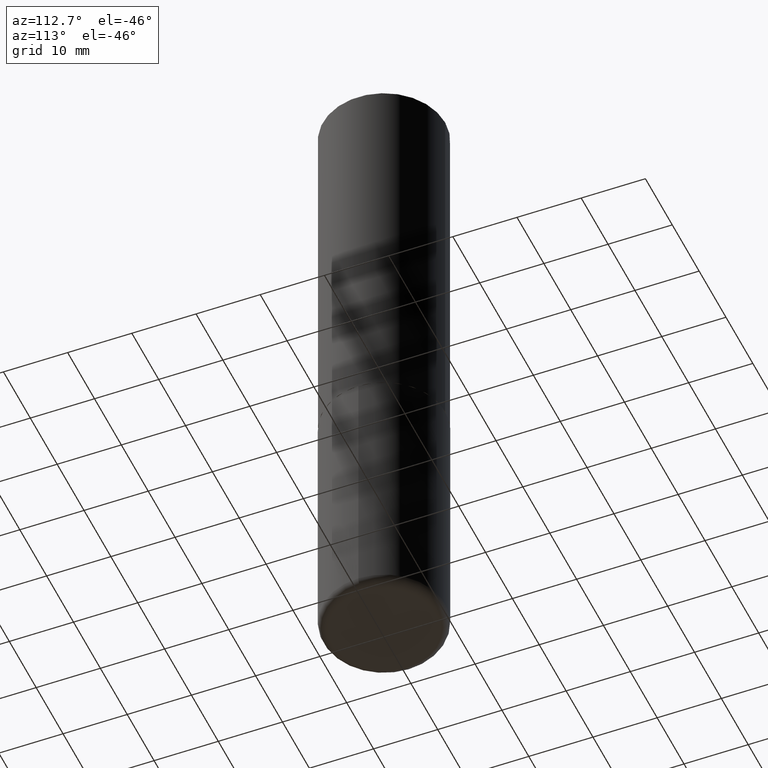
[diagram: clean part render]
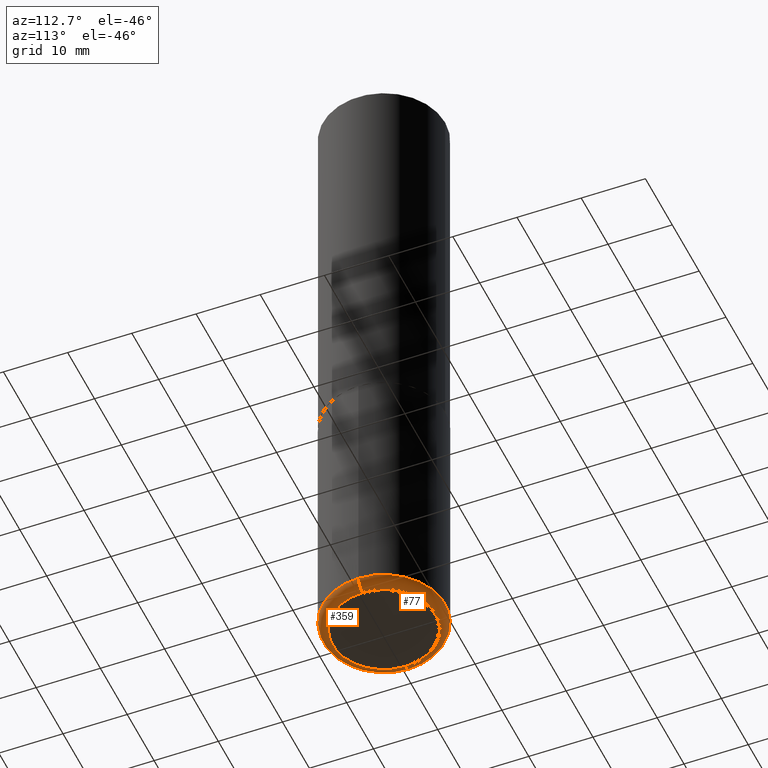
[diagram: same view with one multi-face feature highlighted, each face labeled with its STEP entity id]
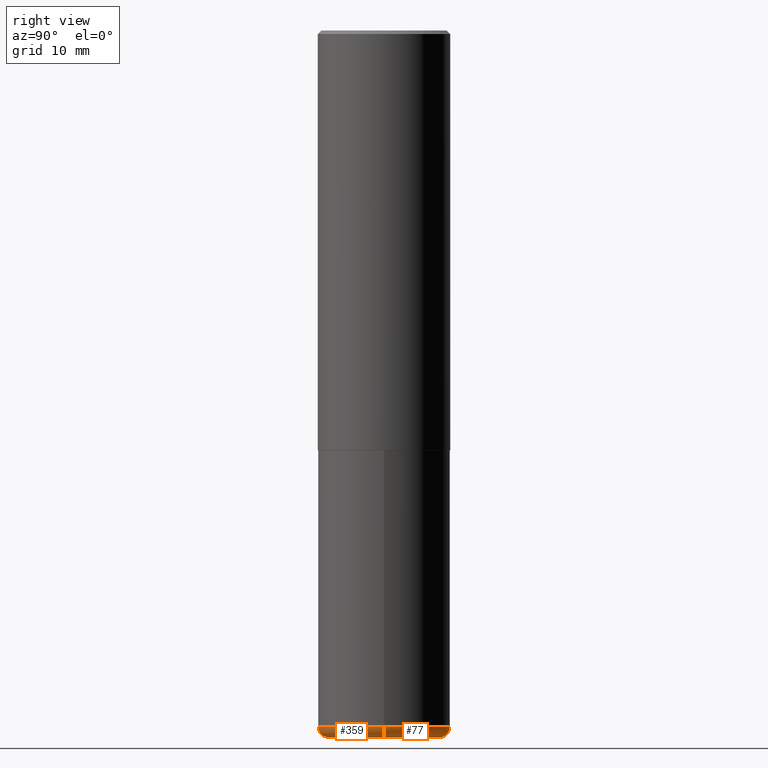
[diagram: same view with one multi-face feature highlighted, each face labeled with its STEP entity id]
A machine part, auxiliary view. The highlighted faces form ONE feature: a constant-radius fillet chain: 2 tangent blend faces with common blend radius 1.524 mm. The faces share edges in the B-rep.
A second angle (right view) of the same feature is appended — it is thin or edge-on in the first view.
Their STEP definitions:
[1] entity #359 (Torus):
#22 = AXIS2_PLACEMENT_3D ( 'NONE', #84, #278, #179 ) ;
#30 = AXIS2_PLACEMENT_3D ( 'NONE', #321, #124, #225 ) ;
#32 = DIRECTION ( 'NONE',  ( 1.000000000000000000, -6.982962677686279332E-15, 0.000000000000000000 ) ) ;
#50 = DIRECTION ( 'NONE',  ( -2.445468806185136597E-29, 3.491481338843145583E-15, 1.000000000000000000 ) ) ;
#53 = AXIS2_PLACEMENT_3D ( 'NONE', #210, #50, #371 ) ;
#64 = DIRECTION ( 'NONE',  ( -6.982962677686266711E-15, -1.000000000000000000, 3.491481338843145583E-15 ) ) ;
#74 = AXIS2_PLACEMENT_3D ( 'NONE', #265, #128, #403 ) ;
#84 = CARTESIAN_POINT ( 'NONE',  ( 9.781875224740547508E-29, -1.396592535537258391E-14, -4.000000000000000888 ) ) ;
#93 = EDGE_LOOP ( 'NONE', ( #178, #111, #127, #295 ) ) ;
#111 = ORIENTED_EDGE ( 'NONE', *, *, #370, .T. ) ;
#124 = DIRECTION ( 'NONE',  ( 7.105427357601001859E-15, 1.000000000000000000, -3.491481338843145583E-15 ) ) ;
#127 = ORIENTED_EDGE ( 'NONE', *, *, #145, .T. ) ;
#128 = DIRECTION ( 'NONE',  ( -2.445468806185136597E-29, 3.491481338843145583E-15, 1.000000000000000000 ) ) ;
#145 = EDGE_CURVE ( 'NONE', #322, #231, #151, .T. ) ;
#148 = CARTESIAN_POINT ( 'NONE',  ( 0.3150000000000000577, -1.616555859884375729E-14, -4.000000000000000888 ) ) ;
#151 = CIRCLE ( 'NONE', #252, 0.06000000000000017819 ) ;
#178 = ORIENTED_EDGE ( 'NONE', *, *, #185, .F. ) ;
#179 = DIRECTION ( 'NONE',  ( 1.000000000000000000, -6.982962677686267499E-15, 0.000000000000000000 ) ) ;
#185 = EDGE_CURVE ( 'NONE', #241, #318, #305, .T. ) ;
#210 = CARTESIAN_POINT ( 'NONE',  ( 9.635147096369438236E-29, -1.375643647504199401E-14, -3.939999999999999947 ) ) ;
#213 = TOROIDAL_SURFACE ( 'NONE', #53, 0.3150000000000000577, 0.06000000000000021289 ) ;
#225 = DIRECTION ( 'NONE',  ( -1.000000000000000000, 7.105427357601001859E-15, 0.000000000000000000 ) ) ;
#231 = VERTEX_POINT ( 'NONE', #303 ) ;
#239 = CIRCLE ( 'NONE', #74, 0.3750000000000000555 ) ;
#241 = VERTEX_POINT ( 'NONE', #261 ) ;
#243 = FACE_OUTER_BOUND ( 'NONE', #93, .T. ) ;
#252 = AXIS2_PLACEMENT_3D ( 'NONE', #325, #64, #32 ) ;
#261 = CARTESIAN_POINT ( 'NONE',  ( -0.3150000000000000577, -1.140980847683494193E-14, -4.000000000000000888 ) ) ;
#265 = CARTESIAN_POINT ( 'NONE',  ( 9.635147096369438236E-29, -1.375643647504199401E-14, -3.939999999999999947 ) ) ;
#278 = DIRECTION ( 'NONE',  ( -2.445468806185136597E-29, 3.491481338843145583E-15, 1.000000000000000000 ) ) ;
#295 = ORIENTED_EDGE ( 'NONE', *, *, #357, .F. ) ;
#303 = CARTESIAN_POINT ( 'NONE',  ( 0.3750000000000001110, -1.637504747917434403E-14, -3.939999999999999947 ) ) ;
#305 = CIRCLE ( 'NONE', #30, 0.06000000000000017819 ) ;
#318 = VERTEX_POINT ( 'NONE', #348 ) ;
#321 = CARTESIAN_POINT ( 'NONE',  ( -0.3150000000000000577, -1.151822685739767881E-14, -3.939999999999999947 ) ) ;
#322 = VERTEX_POINT ( 'NONE', #148 ) ;
#325 = CARTESIAN_POINT ( 'NONE',  ( 0.3150000000000000577, -1.595606971851316740E-14, -3.939999999999999947 ) ) ;
#339 = CIRCLE ( 'NONE', #22, 0.3150000000000000577 ) ;
#348 = CARTESIAN_POINT ( 'NONE',  ( -0.3750000000000001110, -1.109190121594161832E-14, -3.939999999999999947 ) ) ;
#357 = EDGE_CURVE ( 'NONE', #318, #231, #239, .T. ) ;
#359 = ADVANCED_FACE ( 'NONE', ( #243 ), #213, .T. ) ;
#370 = EDGE_CURVE ( 'NONE', #241, #322, #339, .T. ) ;
#371 = DIRECTION ( 'NONE',  ( 1.000000000000000000, -6.982962677686263555E-15, 4.883557194083111219E-29 ) ) ;
#403 = DIRECTION ( 'NONE',  ( 1.000000000000000000, -6.982962677686266711E-15, 0.000000000000000000 ) ) ;
[2] entity #77 (Torus):
#7 = CARTESIAN_POINT ( 'NONE',  ( 9.635147096369438236E-29, -1.375643647504199401E-14, -3.939999999999999947 ) ) ;
#30 = AXIS2_PLACEMENT_3D ( 'NONE', #321, #124, #225 ) ;
#32 = DIRECTION ( 'NONE',  ( 1.000000000000000000, -6.982962677686279332E-15, 0.000000000000000000 ) ) ;
#42 = DIRECTION ( 'NONE',  ( 1.000000000000000000, -6.982962677686267499E-15, 0.000000000000000000 ) ) ;
#48 = ORIENTED_EDGE ( 'NONE', *, *, #185, .T. ) ;
#64 = DIRECTION ( 'NONE',  ( -6.982962677686266711E-15, -1.000000000000000000, 3.491481338843145583E-15 ) ) ;
#72 = AXIS2_PLACEMENT_3D ( 'NONE', #7, #94, #290 ) ;
#77 = ADVANCED_FACE ( 'NONE', ( #373 ), #244, .T. ) ;
#80 = DIRECTION ( 'NONE',  ( -2.445468806185136597E-29, 3.491481338843145583E-15, 1.000000000000000000 ) ) ;
#94 = DIRECTION ( 'NONE',  ( -2.445468806185136597E-29, 3.491481338843145583E-15, 1.000000000000000000 ) ) ;
#96 = EDGE_CURVE ( 'NONE', #231, #318, #212, .T. ) ;
#124 = DIRECTION ( 'NONE',  ( 7.105427357601001859E-15, 1.000000000000000000, -3.491481338843145583E-15 ) ) ;
#145 = EDGE_CURVE ( 'NONE', #322, #231, #151, .T. ) ;
#148 = CARTESIAN_POINT ( 'NONE',  ( 0.3150000000000000577, -1.616555859884375729E-14, -4.000000000000000888 ) ) ;
#151 = CIRCLE ( 'NONE', #252, 0.06000000000000017819 ) ;
#164 = DIRECTION ( 'NONE',  ( 1.000000000000000000, -6.982962677686266711E-15, 0.000000000000000000 ) ) ;
#172 = EDGE_LOOP ( 'NONE', ( #222, #48, #391, #372 ) ) ;
#185 = EDGE_CURVE ( 'NONE', #241, #318, #305, .T. ) ;
#190 = CARTESIAN_POINT ( 'NONE',  ( 9.635147096369438236E-29, -1.375643647504199401E-14, -3.939999999999999947 ) ) ;
#212 = CIRCLE ( 'NONE', #264, 0.3750000000000000555 ) ;
#222 = ORIENTED_EDGE ( 'NONE', *, *, #269, .T. ) ;
#225 = DIRECTION ( 'NONE',  ( -1.000000000000000000, 7.105427357601001859E-15, 0.000000000000000000 ) ) ;
#230 = CARTESIAN_POINT ( 'NONE',  ( 9.781875224740547508E-29, -1.396592535537258391E-14, -4.000000000000000888 ) ) ;
#231 = VERTEX_POINT ( 'NONE', #303 ) ;
#241 = VERTEX_POINT ( 'NONE', #261 ) ;
#244 = TOROIDAL_SURFACE ( 'NONE', #72, 0.3150000000000000577, 0.06000000000000021289 ) ;
#252 = AXIS2_PLACEMENT_3D ( 'NONE', #325, #64, #32 ) ;
#258 = AXIS2_PLACEMENT_3D ( 'NONE', #230, #80, #42 ) ;
#261 = CARTESIAN_POINT ( 'NONE',  ( -0.3150000000000000577, -1.140980847683494193E-14, -4.000000000000000888 ) ) ;
#264 = AXIS2_PLACEMENT_3D ( 'NONE', #190, #288, #164 ) ;
#269 = EDGE_CURVE ( 'NONE', #322, #241, #301, .T. ) ;
#288 = DIRECTION ( 'NONE',  ( -2.445468806185136597E-29, 3.491481338843145583E-15, 1.000000000000000000 ) ) ;
#290 = DIRECTION ( 'NONE',  ( 1.000000000000000000, -6.982962677686263555E-15, 4.883557194083111219E-29 ) ) ;
#301 = CIRCLE ( 'NONE', #258, 0.3150000000000000577 ) ;
#303 = CARTESIAN_POINT ( 'NONE',  ( 0.3750000000000001110, -1.637504747917434403E-14, -3.939999999999999947 ) ) ;
#305 = CIRCLE ( 'NONE', #30, 0.06000000000000017819 ) ;
#318 = VERTEX_POINT ( 'NONE', #348 ) ;
#321 = CARTESIAN_POINT ( 'NONE',  ( -0.3150000000000000577, -1.151822685739767881E-14, -3.939999999999999947 ) ) ;
#322 = VERTEX_POINT ( 'NONE', #148 ) ;
#325 = CARTESIAN_POINT ( 'NONE',  ( 0.3150000000000000577, -1.595606971851316740E-14, -3.939999999999999947 ) ) ;
#348 = CARTESIAN_POINT ( 'NONE',  ( -0.3750000000000001110, -1.109190121594161832E-14, -3.939999999999999947 ) ) ;
#372 = ORIENTED_EDGE ( 'NONE', *, *, #145, .F. ) ;
#373 = FACE_OUTER_BOUND ( 'NONE', #172, .T. ) ;
#391 = ORIENTED_EDGE ( 'NONE', *, *, #96, .F. ) ;